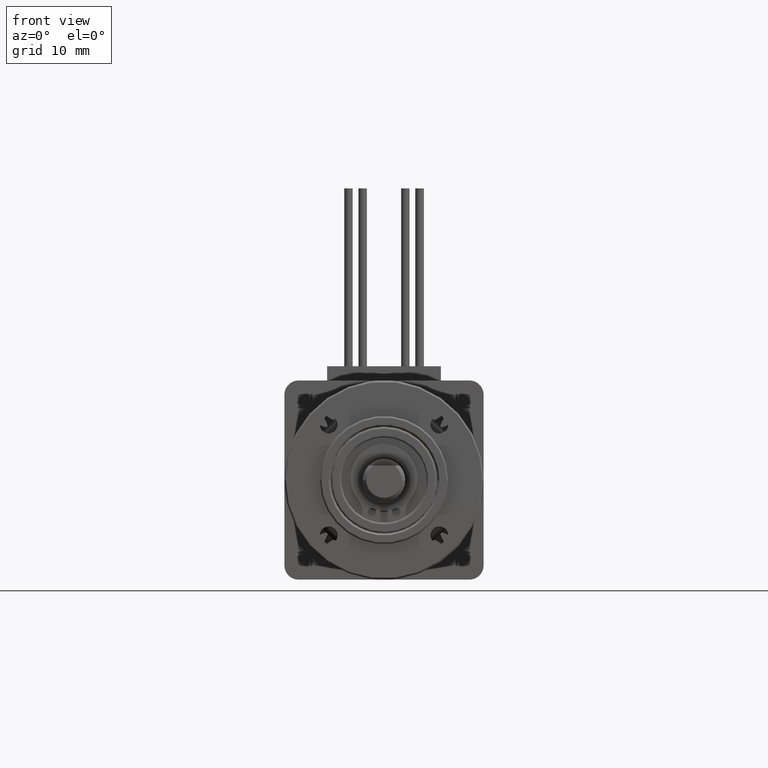
[diagram: clean part render]
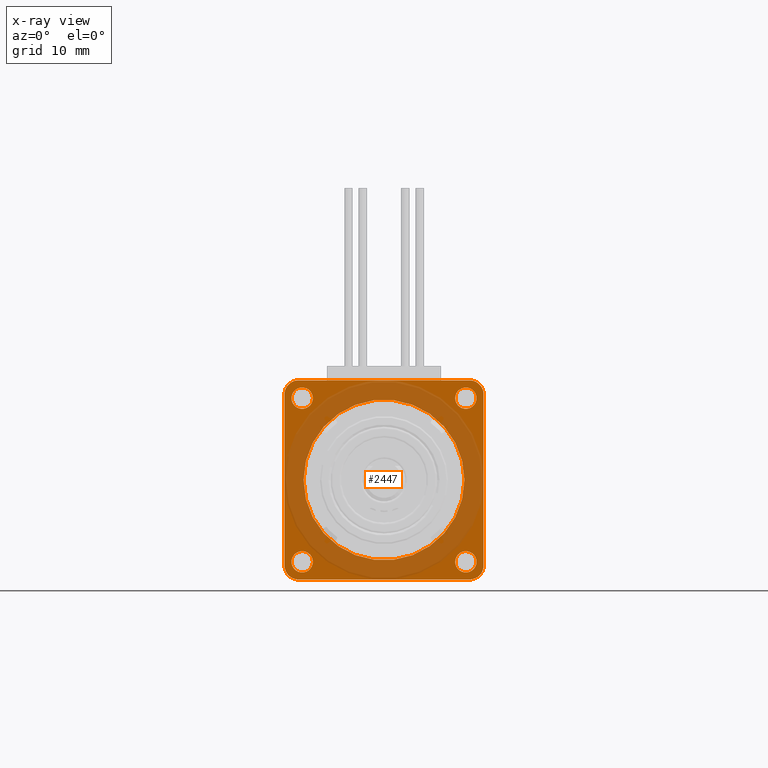
[diagram: x-ray — body ghosted, one internal face saturated and labeled with its STEP entity id]
A machine part, front view, then the same camera in x-ray: the body is ghosted and one INTERNAL B-rep face — a face not visible from any outside direction — is saturated and labeled: STEP entity #2447.
In plain terms, the highlighted planar face has unit normal (0, -1, 0).
Its self-contained STEP definition (entity closure, byte-faithful):
#317 = ORIENTED_EDGE ( 'NONE', *, *, #1604, .T. ) ;
#570 = FACE_OUTER_BOUND ( 'NONE', #8206, .T. ) ;
#954 = ORIENTED_EDGE ( 'NONE', *, *, #15260, .T. ) ;
#1128 = VERTEX_POINT ( 'NONE', #31123 ) ;
#1380 = ORIENTED_EDGE ( 'NONE', *, *, #15143, .F. ) ;
#1604 = EDGE_CURVE ( 'NONE', #5518, #30192, #25605, .T. ) ;
#1735 = CARTESIAN_POINT ( 'NONE',  ( 12.99999999999999822, 11.50000000000000000, -3.500000000000000000 ) ) ;
#1830 = LINE ( 'NONE', #2153, #6482 ) ;
#2153 = CARTESIAN_POINT ( 'NONE',  ( -14.00000000000000711, 13.99999999999999467, -3.500000000000000000 ) ) ;
#2243 = CARTESIAN_POINT ( 'NONE',  ( -14.00000000000000355, -14.00000000000000533, -3.500000000000000000 ) ) ;
#2381 = CARTESIAN_POINT ( 'NONE',  ( 11.99999999999999822, -12.00000000000000533, -3.500000000000000000 ) ) ;
#2399 = CIRCLE ( 'NONE', #20303, 2.000000000000000000 ) ;
#2447 = ADVANCED_FACE ( 'NONE', ( #22516, #19796, #5523, #29595, #20430, #570 ), #27815, .F. ) ;
#2485 = DIRECTION ( 'NONE',  ( -0.000000000000000000, -0.000000000000000000, -1.000000000000000000 ) ) ;
#2524 = CIRCLE ( 'NONE', #31702, 2.000000000000000000 ) ;
#2670 = CIRCLE ( 'NONE', #27770, 11.30000000000000071 ) ;
#2791 = DIRECTION ( 'NONE',  ( 1.000000000000000000, 0.000000000000000000, 0.000000000000000000 ) ) ;
#2813 = EDGE_CURVE ( 'NONE', #10230, #1128, #18079, .T. ) ;
#2895 = DIRECTION ( 'NONE',  ( -1.000000000000000000, 0.000000000000000000, 0.000000000000000000 ) ) ;
#2928 = ORIENTED_EDGE ( 'NONE', *, *, #28032, .T. ) ;
#3612 = DIRECTION ( 'NONE',  ( -0.000000000000000000, -0.000000000000000000, -1.000000000000000000 ) ) ;
#3747 = DIRECTION ( 'NONE',  ( -1.000000000000000000, 0.000000000000000000, 0.000000000000000000 ) ) ;
#3996 = VERTEX_POINT ( 'NONE', #26401 ) ;
#4062 = VERTEX_POINT ( 'NONE', #29303 ) ;
#4123 = EDGE_CURVE ( 'NONE', #9026, #4062, #18253, .T. ) ;
#4333 = EDGE_LOOP ( 'NONE', ( #26270, #10993 ) ) ;
#4478 = CARTESIAN_POINT ( 'NONE',  ( 13.99999999999999289, 13.99999999999999467, -3.500000000000000000 ) ) ;
#4823 = CARTESIAN_POINT ( 'NONE',  ( 11.49999999999999822, 11.50000000000000000, -3.500000000000000000 ) ) ;
#4825 = CARTESIAN_POINT ( 'NONE',  ( 13.99999999999999289, 11.99999999999999467, -3.500000000000000000 ) ) ;
#4857 = CARTESIAN_POINT ( 'NONE',  ( 0.000000000000000000, 0.000000000000000000, -3.500000000000000000 ) ) ;
#5111 = CARTESIAN_POINT ( 'NONE',  ( 10.00000000000000355, -11.50000000000000000, -3.500000000000000000 ) ) ;
#5442 = ORIENTED_EDGE ( 'NONE', *, *, #15273, .T. ) ;
#5517 = EDGE_CURVE ( 'NONE', #3996, #21840, #23152, .T. ) ;
#5518 = VERTEX_POINT ( 'NONE', #22039 ) ;
#5523 = FACE_BOUND ( 'NONE', #26151, .T. ) ;
#5702 = VERTEX_POINT ( 'NONE', #7765 ) ;
#6102 = ORIENTED_EDGE ( 'NONE', *, *, #31029, .F. ) ;
#6204 = EDGE_LOOP ( 'NONE', ( #15380, #30094 ) ) ;
#6482 = VECTOR ( 'NONE', #21703, 1000.000000000000000 ) ;
#6733 = VERTEX_POINT ( 'NONE', #16096 ) ;
#7041 = DIRECTION ( 'NONE',  ( -2.478176394252581634E-16, 1.000000000000000000, -0.000000000000000000 ) ) ;
#7128 = AXIS2_PLACEMENT_3D ( 'NONE', #4823, #10248, #2895 ) ;
#7167 = CIRCLE ( 'NONE', #9709, 1.499999999999999556 ) ;
#7259 = VERTEX_POINT ( 'NONE', #17011 ) ;
#7467 = AXIS2_PLACEMENT_3D ( 'NONE', #16006, #28358, #21131 ) ;
#7491 = VERTEX_POINT ( 'NONE', #12999 ) ;
#7765 = CARTESIAN_POINT ( 'NONE',  ( -12.00000000000000711, 13.99999999999999467, -3.500000000000000000 ) ) ;
#8012 = CARTESIAN_POINT ( 'NONE',  ( -12.00000000000000711, 11.99999999999999467, -3.500000000000000000 ) ) ;
#8057 = DIRECTION ( 'NONE',  ( -0.000000000000000000, 0.000000000000000000, 1.000000000000000000 ) ) ;
#8171 = EDGE_CURVE ( 'NONE', #1128, #10230, #18223, .T. ) ;
#8206 = EDGE_LOOP ( 'NONE', ( #11619, #8944, #1380, #23032, #6102, #317, #31569, #5442 ) ) ;
#8495 = DIRECTION ( 'NONE',  ( 1.000000000000000000, 0.000000000000000000, 0.000000000000000000 ) ) ;
#8648 = DIRECTION ( 'NONE',  ( -1.000000000000000000, 0.000000000000000000, 0.000000000000000000 ) ) ;
#8664 = CIRCLE ( 'NONE', #7128, 1.499999999999999556 ) ;
#8730 = DIRECTION ( 'NONE',  ( 1.239088197126290817E-16, -1.000000000000000000, 0.000000000000000000 ) ) ;
#8732 = DIRECTION ( 'NONE',  ( -1.000000000000000000, 0.000000000000000000, 0.000000000000000000 ) ) ;
#8944 = ORIENTED_EDGE ( 'NONE', *, *, #23722, .T. ) ;
#9026 = VERTEX_POINT ( 'NONE', #27484 ) ;
#9186 = VECTOR ( 'NONE', #7041, 1000.000000000000000 ) ;
#9202 = AXIS2_PLACEMENT_3D ( 'NONE', #13156, #18121, #8648 ) ;
#9709 = AXIS2_PLACEMENT_3D ( 'NONE', #23673, #28818, #21259 ) ;
#9933 = VERTEX_POINT ( 'NONE', #24822 ) ;
#10230 = VERTEX_POINT ( 'NONE', #23027 ) ;
#10248 = DIRECTION ( 'NONE',  ( -0.000000000000000000, -0.000000000000000000, -1.000000000000000000 ) ) ;
#10834 = VERTEX_POINT ( 'NONE', #24105 ) ;
#10993 = ORIENTED_EDGE ( 'NONE', *, *, #23530, .F. ) ;
#11323 = AXIS2_PLACEMENT_3D ( 'NONE', #21940, #29498, #22417 ) ;
#11396 = VERTEX_POINT ( 'NONE', #4825 ) ;
#11619 = ORIENTED_EDGE ( 'NONE', *, *, #16277, .F. ) ;
#12252 = DIRECTION ( 'NONE',  ( -1.000000000000000000, 0.000000000000000000, 0.000000000000000000 ) ) ;
#12999 = CARTESIAN_POINT ( 'NONE',  ( -12.00000000000000355, -14.00000000000000533, -3.500000000000000000 ) ) ;
#13146 = DIRECTION ( 'NONE',  ( 0.000000000000000000, -0.000000000000000000, -1.000000000000000000 ) ) ;
#13156 = CARTESIAN_POINT ( 'NONE',  ( 11.49999999999999822, 11.50000000000000000, -3.500000000000000000 ) ) ;
#13172 = ORIENTED_EDGE ( 'NONE', *, *, #2813, .F. ) ;
#13389 = LINE ( 'NONE', #13548, #23446 ) ;
#13548 = CARTESIAN_POINT ( 'NONE',  ( -14.00000000000000711, 13.99999999999999467, -3.500000000000000000 ) ) ;
#14090 = DIRECTION ( 'NONE',  ( 1.000000000000000000, 0.000000000000000000, 0.000000000000000000 ) ) ;
#14804 = DIRECTION ( 'NONE',  ( 0.000000000000000000, -0.000000000000000000, -1.000000000000000000 ) ) ;
#15012 = CARTESIAN_POINT ( 'NONE',  ( -11.50000000000000178, 11.50000000000000000, -3.500000000000000000 ) ) ;
#15143 = EDGE_CURVE ( 'NONE', #16834, #5702, #1830, .T. ) ;
#15260 = EDGE_CURVE ( 'NONE', #9933, #7259, #30057, .T. ) ;
#15273 = EDGE_CURVE ( 'NONE', #7491, #6733, #2399, .T. ) ;
#15380 = ORIENTED_EDGE ( 'NONE', *, *, #24617, .F. ) ;
#15407 = CIRCLE ( 'NONE', #11323, 2.000000000000000000 ) ;
#15825 = AXIS2_PLACEMENT_3D ( 'NONE', #18792, #30684, #3747 ) ;
#15950 = CARTESIAN_POINT ( 'NONE',  ( -11.50000000000000355, -11.50000000000000000, -3.500000000000000000 ) ) ;
#16006 = CARTESIAN_POINT ( 'NONE',  ( -11.50000000000000355, -11.50000000000000000, -3.500000000000000000 ) ) ;
#16096 = CARTESIAN_POINT ( 'NONE',  ( -14.00000000000000355, -12.00000000000000711, -3.500000000000000000 ) ) ;
#16277 = EDGE_CURVE ( 'NONE', #10834, #6733, #13389, .T. ) ;
#16331 = LINE ( 'NONE', #2243, #31242 ) ;
#16545 = AXIS2_PLACEMENT_3D ( 'NONE', #15950, #3612, #8732 ) ;
#16834 = VERTEX_POINT ( 'NONE', #23438 ) ;
#16871 = CIRCLE ( 'NONE', #9202, 1.499999999999999556 ) ;
#17011 = CARTESIAN_POINT ( 'NONE',  ( -11.30000000000000071, 0.000000000000000000, -3.500000000000000000 ) ) ;
#17050 = AXIS2_PLACEMENT_3D ( 'NONE', #24792, #20274, #29915 ) ;
#17097 = DIRECTION ( 'NONE',  ( -0.000000000000000000, -0.000000000000000000, -1.000000000000000000 ) ) ;
#17351 = DIRECTION ( 'NONE',  ( -0.000000000000000000, 0.000000000000000000, 1.000000000000000000 ) ) ;
#17498 = EDGE_CURVE ( 'NONE', #7491, #30192, #16331, .T. ) ;
#17516 = AXIS2_PLACEMENT_3D ( 'NONE', #23972, #2485, #12252 ) ;
#18079 = CIRCLE ( 'NONE', #16545, 1.499999999999999556 ) ;
#18121 = DIRECTION ( 'NONE',  ( -0.000000000000000000, -0.000000000000000000, -1.000000000000000000 ) ) ;
#18223 = CIRCLE ( 'NONE', #7467, 1.499999999999999556 ) ;
#18253 = CIRCLE ( 'NONE', #21310, 1.499999999999999556 ) ;
#18792 = CARTESIAN_POINT ( 'NONE',  ( -11.50000000000000178, 11.50000000000000000, -3.500000000000000000 ) ) ;
#19524 = DIRECTION ( 'NONE',  ( 1.000000000000000000, -8.673617379884035472E-16, 0.000000000000000000 ) ) ;
#19796 = FACE_BOUND ( 'NONE', #4333, .T. ) ;
#20136 = CARTESIAN_POINT ( 'NONE',  ( 9.999999999999998224, 11.50000000000000000, -3.500000000000000000 ) ) ;
#20274 = DIRECTION ( 'NONE',  ( -0.000000000000000000, 0.000000000000000000, 1.000000000000000000 ) ) ;
#20303 = AXIS2_PLACEMENT_3D ( 'NONE', #22649, #14804, #29885 ) ;
#20430 = FACE_BOUND ( 'NONE', #6204, .T. ) ;
#21131 = DIRECTION ( 'NONE',  ( -1.000000000000000000, 0.000000000000000000, 0.000000000000000000 ) ) ;
#21259 = DIRECTION ( 'NONE',  ( -1.000000000000000000, 0.000000000000000000, 0.000000000000000000 ) ) ;
#21310 = AXIS2_PLACEMENT_3D ( 'NONE', #15012, #17097, #29610 ) ;
#21703 = DIRECTION ( 'NONE',  ( -1.000000000000000000, -0.000000000000000000, -0.000000000000000000 ) ) ;
#21721 = CARTESIAN_POINT ( 'NONE',  ( 11.99999999999999822, -14.00000000000000533, -3.500000000000000000 ) ) ;
#21840 = VERTEX_POINT ( 'NONE', #5111 ) ;
#21940 = CARTESIAN_POINT ( 'NONE',  ( 11.99999999999999289, 11.99999999999999467, -3.500000000000000000 ) ) ;
#22039 = CARTESIAN_POINT ( 'NONE',  ( 14.00000000000000000, -12.00000000000000711, -3.500000000000000000 ) ) ;
#22417 = DIRECTION ( 'NONE',  ( 1.000000000000000000, 0.000000000000000000, 0.000000000000000000 ) ) ;
#22516 = FACE_BOUND ( 'NONE', #22684, .T. ) ;
#22649 = CARTESIAN_POINT ( 'NONE',  ( -12.00000000000000355, -12.00000000000000711, -3.500000000000000000 ) ) ;
#22684 = EDGE_LOOP ( 'NONE', ( #2928, #954 ) ) ;
#22991 = CIRCLE ( 'NONE', #15825, 1.499999999999999556 ) ;
#23027 = CARTESIAN_POINT ( 'NONE',  ( -13.00000000000000355, -11.50000000000000000, -3.500000000000000000 ) ) ;
#23032 = ORIENTED_EDGE ( 'NONE', *, *, #25564, .T. ) ;
#23104 = ORIENTED_EDGE ( 'NONE', *, *, #4123, .F. ) ;
#23152 = CIRCLE ( 'NONE', #17516, 1.499999999999999556 ) ;
#23438 = CARTESIAN_POINT ( 'NONE',  ( 11.99999999999999467, 13.99999999999999467, -3.500000000000000000 ) ) ;
#23446 = VECTOR ( 'NONE', #8730, 1000.000000000000000 ) ;
#23530 = EDGE_CURVE ( 'NONE', #31450, #24860, #8664, .T. ) ;
#23673 = CARTESIAN_POINT ( 'NONE',  ( 11.50000000000000355, -11.50000000000000000, -3.500000000000000000 ) ) ;
#23722 = EDGE_CURVE ( 'NONE', #10834, #5702, #2524, .T. ) ;
#23972 = CARTESIAN_POINT ( 'NONE',  ( 11.50000000000000355, -11.50000000000000000, -3.500000000000000000 ) ) ;
#24091 = EDGE_CURVE ( 'NONE', #24860, #31450, #16871, .T. ) ;
#24105 = CARTESIAN_POINT ( 'NONE',  ( -14.00000000000000711, 11.99999999999999467, -3.500000000000000000 ) ) ;
#24595 = DIRECTION ( 'NONE',  ( 1.000000000000000000, 0.000000000000000000, 0.000000000000000000 ) ) ;
#24617 = EDGE_CURVE ( 'NONE', #21840, #3996, #7167, .T. ) ;
#24792 = CARTESIAN_POINT ( 'NONE',  ( 0.000000000000000000, 0.000000000000000000, -3.500000000000000000 ) ) ;
#24822 = CARTESIAN_POINT ( 'NONE',  ( 11.30000000000000071, 1.383850883036509265E-15, -3.500000000000000000 ) ) ;
#24860 = VERTEX_POINT ( 'NONE', #20136 ) ;
#25564 = EDGE_CURVE ( 'NONE', #16834, #11396, #15407, .T. ) ;
#25605 = CIRCLE ( 'NONE', #28661, 2.000000000000000000 ) ;
#26139 = LINE ( 'NONE', #4478, #9186 ) ;
#26151 = EDGE_LOOP ( 'NONE', ( #27068, #23104 ) ) ;
#26270 = ORIENTED_EDGE ( 'NONE', *, *, #24091, .F. ) ;
#26401 = CARTESIAN_POINT ( 'NONE',  ( 13.00000000000000355, -11.50000000000000000, -3.500000000000000000 ) ) ;
#26964 = AXIS2_PLACEMENT_3D ( 'NONE', #4857, #8057, #24595 ) ;
#27046 = DIRECTION ( 'NONE',  ( 0.000000000000000000, -0.000000000000000000, -1.000000000000000000 ) ) ;
#27068 = ORIENTED_EDGE ( 'NONE', *, *, #30430, .F. ) ;
#27484 = CARTESIAN_POINT ( 'NONE',  ( -10.00000000000000178, 11.50000000000000000, -3.500000000000000000 ) ) ;
#27770 = AXIS2_PLACEMENT_3D ( 'NONE', #29568, #17351, #2791 ) ;
#27815 = PLANE ( 'NONE',  #17050 ) ;
#28032 = EDGE_CURVE ( 'NONE', #7259, #9933, #2670, .T. ) ;
#28148 = EDGE_LOOP ( 'NONE', ( #13172, #31233 ) ) ;
#28358 = DIRECTION ( 'NONE',  ( -0.000000000000000000, -0.000000000000000000, -1.000000000000000000 ) ) ;
#28661 = AXIS2_PLACEMENT_3D ( 'NONE', #2381, #27046, #19524 ) ;
#28818 = DIRECTION ( 'NONE',  ( -0.000000000000000000, -0.000000000000000000, -1.000000000000000000 ) ) ;
#29303 = CARTESIAN_POINT ( 'NONE',  ( -13.00000000000000178, 11.50000000000000000, -3.500000000000000000 ) ) ;
#29498 = DIRECTION ( 'NONE',  ( 0.000000000000000000, -0.000000000000000000, -1.000000000000000000 ) ) ;
#29568 = CARTESIAN_POINT ( 'NONE',  ( 0.000000000000000000, 0.000000000000000000, -3.500000000000000000 ) ) ;
#29595 = FACE_BOUND ( 'NONE', #28148, .T. ) ;
#29610 = DIRECTION ( 'NONE',  ( -1.000000000000000000, 0.000000000000000000, 0.000000000000000000 ) ) ;
#29885 = DIRECTION ( 'NONE',  ( 1.000000000000000000, 0.000000000000000000, 0.000000000000000000 ) ) ;
#29915 = DIRECTION ( 'NONE',  ( 1.000000000000000000, 0.000000000000000000, 0.000000000000000000 ) ) ;
#30057 = CIRCLE ( 'NONE', #26964, 11.30000000000000071 ) ;
#30094 = ORIENTED_EDGE ( 'NONE', *, *, #5517, .F. ) ;
#30192 = VERTEX_POINT ( 'NONE', #21721 ) ;
#30430 = EDGE_CURVE ( 'NONE', #4062, #9026, #22991, .T. ) ;
#30684 = DIRECTION ( 'NONE',  ( -0.000000000000000000, -0.000000000000000000, -1.000000000000000000 ) ) ;
#31029 = EDGE_CURVE ( 'NONE', #5518, #11396, #26139, .T. ) ;
#31123 = CARTESIAN_POINT ( 'NONE',  ( -10.00000000000000355, -11.50000000000000000, -3.500000000000000000 ) ) ;
#31233 = ORIENTED_EDGE ( 'NONE', *, *, #8171, .F. ) ;
#31242 = VECTOR ( 'NONE', #14090, 1000.000000000000000 ) ;
#31450 = VERTEX_POINT ( 'NONE', #1735 ) ;
#31569 = ORIENTED_EDGE ( 'NONE', *, *, #17498, .F. ) ;
#31702 = AXIS2_PLACEMENT_3D ( 'NONE', #8012, #13146, #8495 ) ;